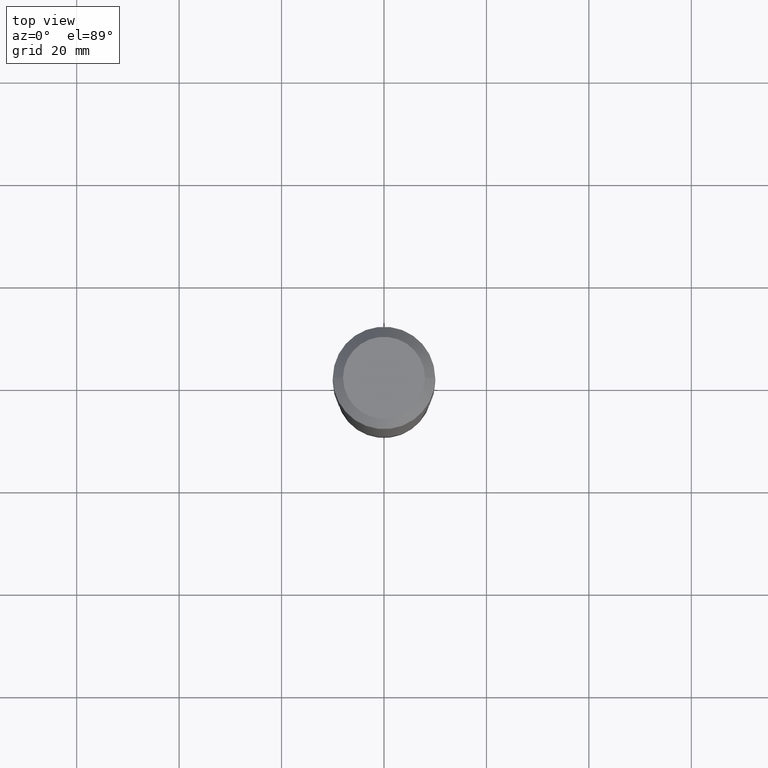
[diagram: clean part render]
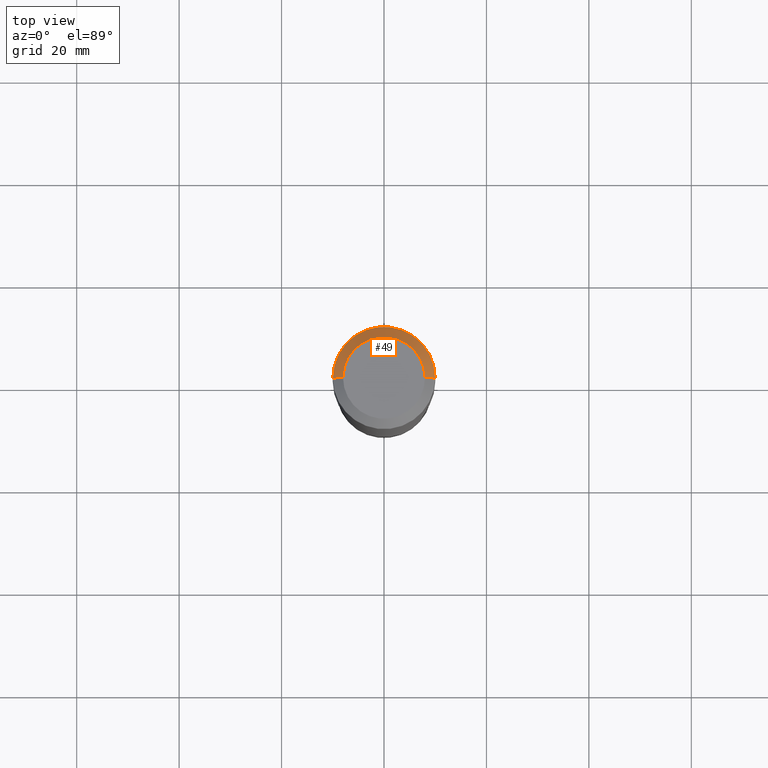
[diagram: same view with one face highlighted and labeled with its STEP entity id]
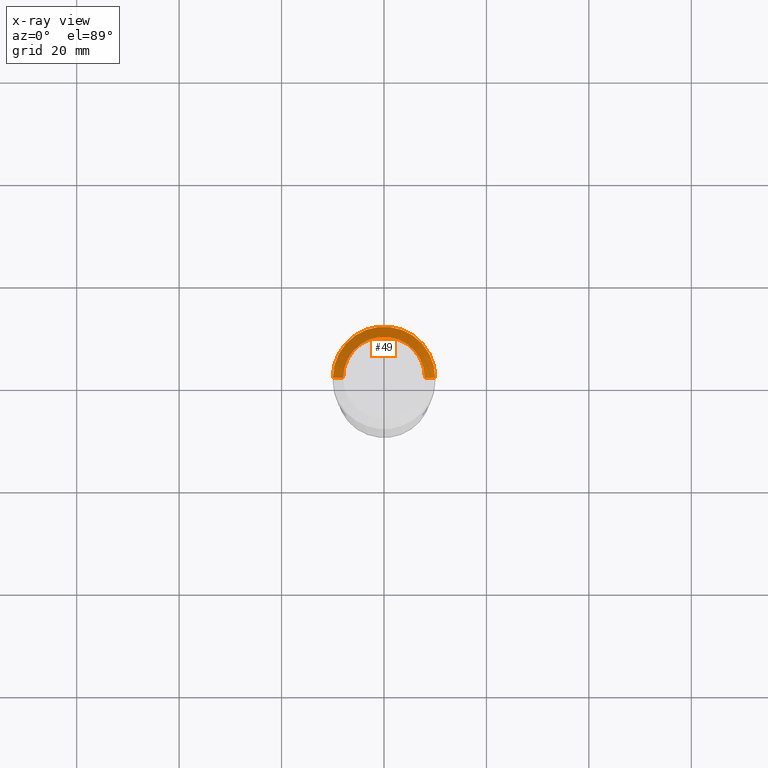
[diagram: x-ray of the same camera — body ghosted, the highlighted face saturated]
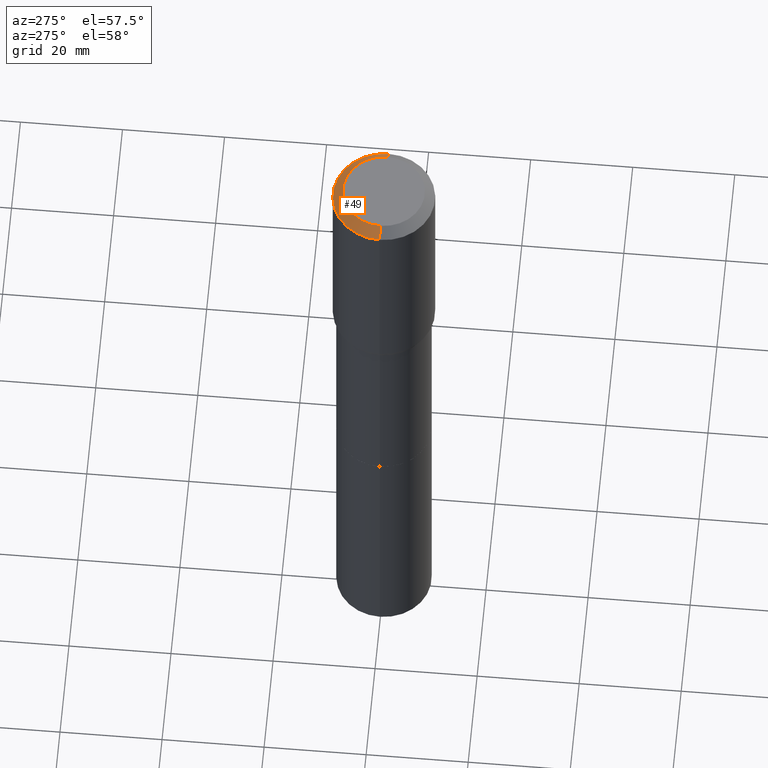
[diagram: same view with one face highlighted and labeled with its STEP entity id]
A machine part, top view. The second image highlights one B-rep face of the part: STEP entity #49.
The next image is the same camera in x-ray: the body ghosted, the highlighted face saturated — about 0% of this face is hidden behind the body in this view.
A second angle (auxiliary view) of the same face is appended — the face is thin or edge-on in the first view.
In plain terms, the highlighted conical surface has half-angle 45 deg.
Its self-contained STEP definition (entity closure, byte-faithful):
#16 = CIRCLE ( 'NONE', #80, 0.3937000000000000499 ) ;
#24 = CARTESIAN_POINT ( 'NONE',  ( 0.3937000000000000499, -2.975897302343163203E-15, -0.07874000000000053179 ) ) ;
#37 = DIRECTION ( 'NONE',  ( 0.7071067811865452413, -7.319954787623248157E-15, -0.7071067811865497932 ) ) ;
#49 = ADVANCED_FACE ( 'NONE', ( #500 ), #492, .T. ) ;
#62 = CARTESIAN_POINT ( 'NONE',  ( -0.3937000000000000499, -3.285328864653178671E-16, -0.07874000000000053179 ) ) ;
#78 = ORIENTED_EDGE ( 'NONE', *, *, #262, .T. ) ;
#80 = AXIS2_PLACEMENT_3D ( 'NONE', #267, #508, #346 ) ;
#95 = CARTESIAN_POINT ( 'NONE',  ( -9.427742298522567634E-47, 1.346031739168368355E-32, 3.855188123715870730E-18 ) ) ;
#118 = EDGE_CURVE ( 'NONE', #312, #167, #377, .T. ) ;
#138 = CIRCLE ( 'NONE', #233, 0.3149600000000000177 ) ;
#157 = AXIS2_PLACEMENT_3D ( 'NONE', #371, #333, #489 ) ;
#161 = ORIENTED_EDGE ( 'NONE', *, *, #225, .T. ) ;
#167 = VERTEX_POINT ( 'NONE', #62 ) ;
#200 = VECTOR ( 'NONE', #250, 39.37007874015748143 ) ;
#225 = EDGE_CURVE ( 'NONE', #243, #319, #478, .T. ) ;
#233 = AXIS2_PLACEMENT_3D ( 'NONE', #95, #498, #461 ) ;
#243 = VERTEX_POINT ( 'NONE', #306 ) ;
#244 = VECTOR ( 'NONE', #37, 39.37007874015748143 ) ;
#250 = DIRECTION ( 'NONE',  ( -0.7071067811865452413, 2.468850131082233000E-15, -0.7071067811865497932 ) ) ;
#262 = EDGE_CURVE ( 'NONE', #319, #167, #16, .T. ) ;
#267 = CARTESIAN_POINT ( 'NONE',  ( 1.925562137990189780E-30, -2.749192406205111123E-16, -0.07874000000000053179 ) ) ;
#306 = CARTESIAN_POINT ( 'NONE',  ( 0.3149600000000000177, -2.568339875860642378E-15, 3.855188123732540039E-18 ) ) ;
#312 = VERTEX_POINT ( 'NONE', #515 ) ;
#319 = VERTEX_POINT ( 'NONE', #372 ) ;
#325 = ORIENTED_EDGE ( 'NONE', *, *, #412, .F. ) ;
#333 = DIRECTION ( 'NONE',  ( 2.445468806185136597E-29, -3.491481338843145583E-15, -1.000000000000000000 ) ) ;
#346 = DIRECTION ( 'NONE',  ( 1.000000000000000000, -6.982962677686265922E-15, 0.000000000000000000 ) ) ;
#371 = CARTESIAN_POINT ( 'NONE',  ( 1.925562137990189780E-30, -2.749192406205111123E-16, -0.07874000000000053179 ) ) ;
#372 = CARTESIAN_POINT ( 'NONE',  ( 0.3937000000000000499, -3.024111646825594378E-15, -0.07874000000000053179 ) ) ;
#377 = LINE ( 'NONE', #454, #200 ) ;
#412 = EDGE_CURVE ( 'NONE', #243, #312, #138, .T. ) ;
#434 = EDGE_LOOP ( 'NONE', ( #325, #161, #78, #487 ) ) ;
#454 = CARTESIAN_POINT ( 'NONE',  ( -0.3937000000000000499, 2.474273165584572449E-15, -0.07874000000000053179 ) ) ;
#461 = DIRECTION ( 'NONE',  ( 1.000000000000000000, -6.982962677686265922E-15, 4.876223630392693006E-29 ) ) ;
#478 = LINE ( 'NONE', #24, #244 ) ;
#487 = ORIENTED_EDGE ( 'NONE', *, *, #118, .F. ) ;
#489 = DIRECTION ( 'NONE',  ( -1.000000000000000000, 6.982962677686265922E-15, 0.000000000000000000 ) ) ;
#492 = CONICAL_SURFACE ( 'NONE', #157, 0.3937000000000000499, 0.7853981633974450594 ) ;
#498 = DIRECTION ( 'NONE',  ( -2.445468806185136597E-29, 3.491481338843145583E-15, 1.000000000000000000 ) ) ;
#500 = FACE_OUTER_BOUND ( 'NONE', #434, .T. ) ;
#508 = DIRECTION ( 'NONE',  ( -2.445468806185136597E-29, 3.491481338843145583E-15, 1.000000000000000000 ) ) ;
#515 = CARTESIAN_POINT ( 'NONE',  ( -0.3149600000000000177, 2.336813545274319235E-15, 3.855188123700009542E-18 ) ) ;